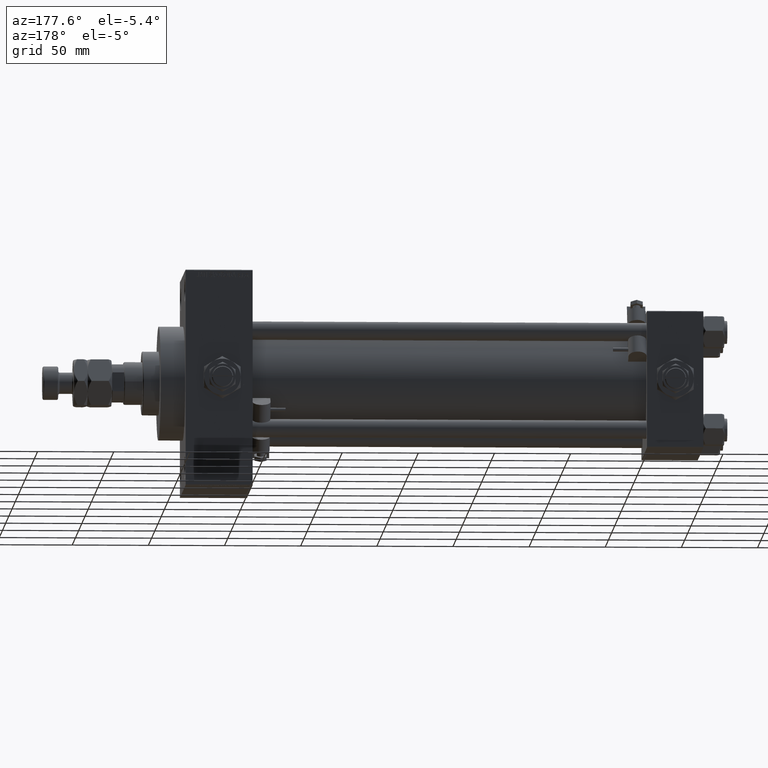
[diagram: clean part render]
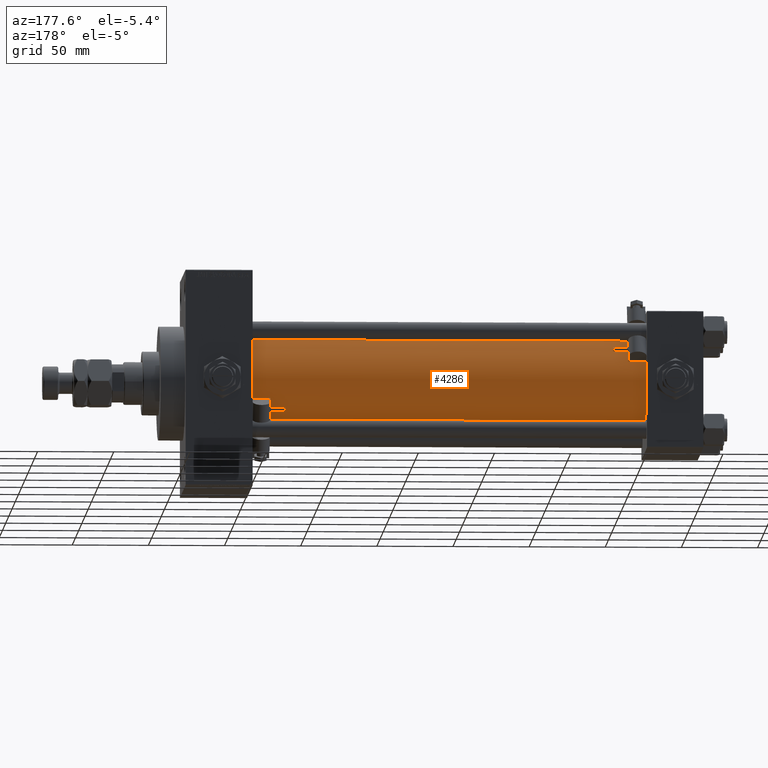
[diagram: same view with one face highlighted and labeled with its STEP entity id]
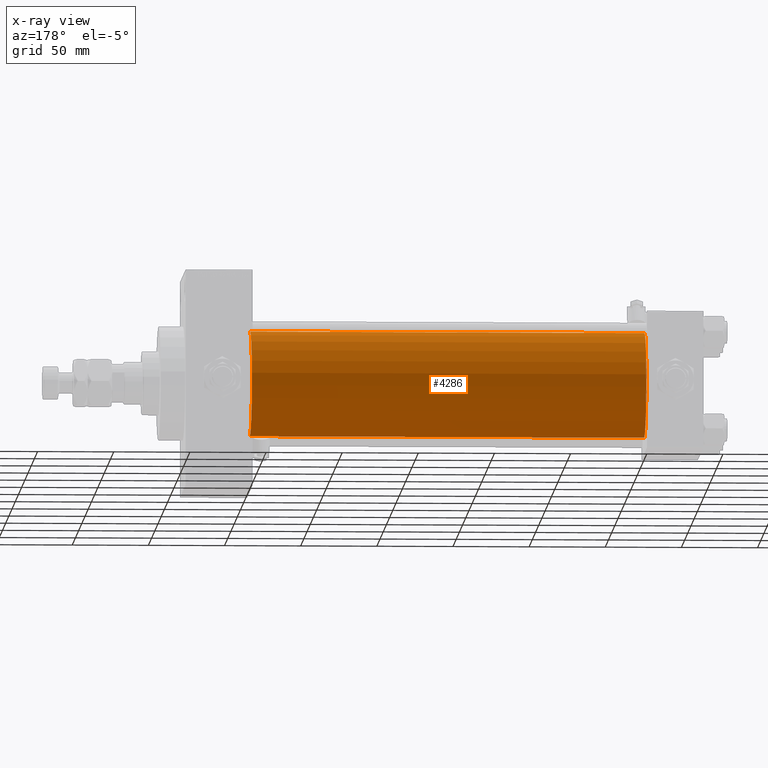
[diagram: x-ray of the same camera — body ghosted, the highlighted face saturated]
A machine part, auxiliary view. The second image highlights one B-rep face of the part: STEP entity #4286.
The next image is the same camera in x-ray: the body ghosted, the highlighted face saturated — about 0% of this face is hidden behind the body in this view.
In plain terms, the highlighted cylindrical surface (partial cylindrical patch) has radius 34.5 mm, axis along (-1, -0, -0).
Its self-contained STEP definition (entity closure, byte-faithful):
#277 = DIRECTION ( 'NONE',  ( -1.000000000000000000, -0.000000000000000000, -0.000000000000000000 ) ) ;
#540 = DIRECTION ( 'NONE',  ( 0.000000000000000000, 0.000000000000000000, 1.000000000000000000 ) ) ;
#4286 = ADVANCED_FACE ( 'NONE', ( #15829 ), #24496, .T. ) ;
#7861 = CARTESIAN_POINT ( 'NONE',  ( 36.99999999999997868, 1.622946243093158675E-15, -34.50000000000000000 ) ) ;
#9101 = EDGE_LOOP ( 'NONE', ( #27013, #47783, #38108, #39956 ) ) ;
#13443 = LINE ( 'NONE', #25557, #36713 ) ;
#14660 = DIRECTION ( 'NONE',  ( 1.000000000000000000, 0.000000000000000000, 0.000000000000000000 ) ) ;
#15318 = AXIS2_PLACEMENT_3D ( 'NONE', #43036, #14660, #31487 ) ;
#15829 = FACE_OUTER_BOUND ( 'NONE', #9101, .T. ) ;
#16848 = CARTESIAN_POINT ( 'NONE',  ( 296.0000000000000000, -2.602085213965210642E-15, 0.000000000000000000 ) ) ;
#19520 = EDGE_CURVE ( 'NONE', #44475, #26679, #37216, .T. ) ;
#20006 = EDGE_CURVE ( 'NONE', #45819, #23661, #13443, .T. ) ;
#21022 = CARTESIAN_POINT ( 'NONE',  ( 36.99999999999997868, -2.602085213965210642E-15, 34.50000000000000000 ) ) ;
#23630 = DIRECTION ( 'NONE',  ( 0.000000000000000000, 0.000000000000000000, 1.000000000000000000 ) ) ;
#23661 = VERTEX_POINT ( 'NONE', #7861 ) ;
#24496 = CYLINDRICAL_SURFACE ( 'NONE', #48006, 34.50000000000000000 ) ;
#25290 = DIRECTION ( 'NONE',  ( -1.000000000000000000, -0.000000000000000000, -0.000000000000000000 ) ) ;
#25557 = CARTESIAN_POINT ( 'NONE',  ( 296.0000000000000000, 1.622946243093158675E-15, -34.50000000000000000 ) ) ;
#25598 = CARTESIAN_POINT ( 'NONE',  ( 296.0000000000000000, 1.622946243093158675E-15, -34.50000000000000000 ) ) ;
#26679 = VERTEX_POINT ( 'NONE', #21022 ) ;
#27013 = ORIENTED_EDGE ( 'NONE', *, *, #33638, .F. ) ;
#28086 = EDGE_CURVE ( 'NONE', #23661, #26679, #47996, .T. ) ;
#31002 = DIRECTION ( 'NONE',  ( 1.000000000000000000, -0.000000000000000000, 0.000000000000000000 ) ) ;
#31487 = DIRECTION ( 'NONE',  ( 0.000000000000000000, 0.000000000000000000, -1.000000000000000000 ) ) ;
#33550 = CARTESIAN_POINT ( 'NONE',  ( 296.0000000000000000, -2.602085213965210642E-15, 34.50000000000000000 ) ) ;
#33638 = EDGE_CURVE ( 'NONE', #45819, #44475, #47221, .T. ) ;
#34169 = VECTOR ( 'NONE', #45352, 1000.000000000000000 ) ;
#36713 = VECTOR ( 'NONE', #25290, 1000.000000000000000 ) ;
#37216 = LINE ( 'NONE', #33550, #34169 ) ;
#38108 = ORIENTED_EDGE ( 'NONE', *, *, #28086, .T. ) ;
#39956 = ORIENTED_EDGE ( 'NONE', *, *, #19520, .F. ) ;
#40425 = AXIS2_PLACEMENT_3D ( 'NONE', #47022, #31002, #23630 ) ;
#41609 = CARTESIAN_POINT ( 'NONE',  ( 296.0000000000000000, -2.602085213965210642E-15, 34.50000000000000000 ) ) ;
#43036 = CARTESIAN_POINT ( 'NONE',  ( 296.0000000000000000, -2.602085213965210642E-15, 0.000000000000000000 ) ) ;
#44475 = VERTEX_POINT ( 'NONE', #41609 ) ;
#45352 = DIRECTION ( 'NONE',  ( -1.000000000000000000, -0.000000000000000000, -0.000000000000000000 ) ) ;
#45819 = VERTEX_POINT ( 'NONE', #25598 ) ;
#47022 = CARTESIAN_POINT ( 'NONE',  ( 36.99999999999997868, -2.602085213965210642E-15, 0.000000000000000000 ) ) ;
#47221 = CIRCLE ( 'NONE', #15318, 34.50000000000000000 ) ;
#47783 = ORIENTED_EDGE ( 'NONE', *, *, #20006, .T. ) ;
#47996 = CIRCLE ( 'NONE', #40425, 34.50000000000000000 ) ;
#48006 = AXIS2_PLACEMENT_3D ( 'NONE', #16848, #277, #540 ) ;